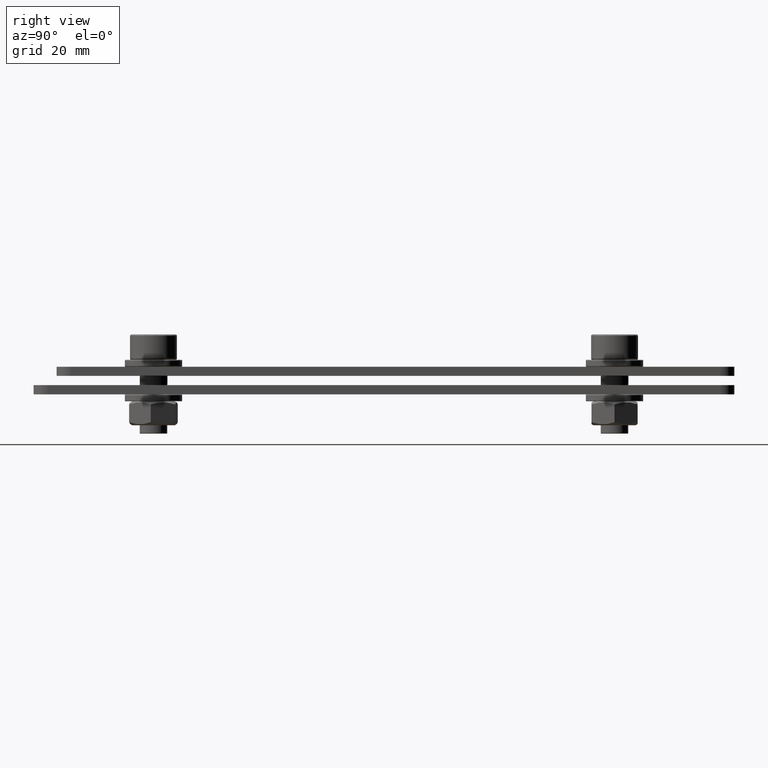
[diagram: clean part render]
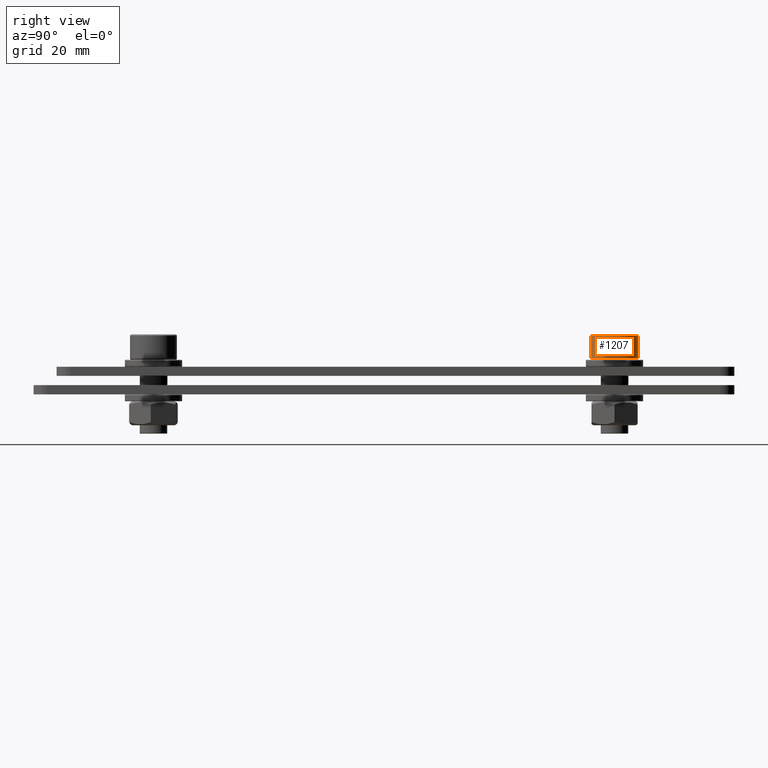
[diagram: same view with one face highlighted and labeled with its STEP entity id]
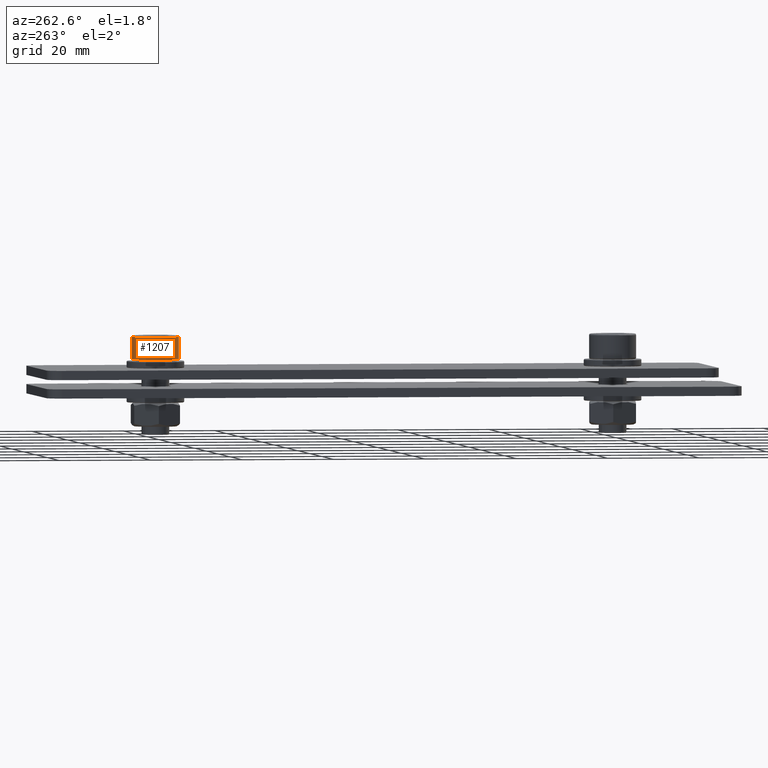
[diagram: same view with one face highlighted and labeled with its STEP entity id]
A machine part, right view. The second image highlights one B-rep face of the part: STEP entity #1207.
A second angle (auxiliary view) of the same face is appended — the face is thin or edge-on in the first view.
In plain terms, the highlighted cylindrical surface (bore or boss wall) has radius 5.1 mm, axis along (-0, 0, -1).
Its self-contained STEP definition (entity closure, byte-faithful):
#42 = VERTEX_POINT ( 'NONE', #3652 ) ;
#209 = CYLINDRICAL_SURFACE ( 'NONE', #431, 5.100000000000001421 ) ;
#318 = EDGE_CURVE ( 'NONE', #3458, #3458, #1781, .T. ) ;
#431 = AXIS2_PLACEMENT_3D ( 'NONE', #3725, #514, #2572 ) ;
#514 = DIRECTION ( 'NONE',  ( -1.110223024625156417E-16, 8.628166150854816622E-32, -1.000000000000000000 ) ) ;
#665 = DIRECTION ( 'NONE',  ( -1.110223024625156417E-16, 8.628166150854816622E-32, -1.000000000000000000 ) ) ;
#670 = AXIS2_PLACEMENT_3D ( 'NONE', #2151, #665, #934 ) ;
#721 = CARTESIAN_POINT ( 'NONE',  ( -20.00000000000002842, 126.0000000000000284, 5.800000000000004263 ) ) ;
#784 = FACE_OUTER_BOUND ( 'NONE', #2841, .T. ) ;
#799 = AXIS2_PLACEMENT_3D ( 'NONE', #721, #3017, #1385 ) ;
#832 = CARTESIAN_POINT ( 'NONE',  ( -17.24018919092320345, 121.7112421031139462, 10.70000000000000462 ) ) ;
#924 = CIRCLE ( 'NONE', #799, 5.100000000000009415 ) ;
#934 = DIRECTION ( 'NONE',  ( 0.5411393743287890024, -0.8409329209580552744, 0.000000000000000000 ) ) ;
#1207 = ADVANCED_FACE ( 'NONE', ( #784, #2845 ), #209, .T. ) ;
#1385 = DIRECTION ( 'NONE',  ( -0.5411393743287867819, 0.8409329209580567177, 0.000000000000000000 ) ) ;
#1781 = CIRCLE ( 'NONE', #670, 5.100000000000001421 ) ;
#2151 = CARTESIAN_POINT ( 'NONE',  ( -20.00000000000002842, 126.0000000000000284, 10.70000000000000462 ) ) ;
#2572 = DIRECTION ( 'NONE',  ( 0.5411393743287890024, -0.8409329209580552744, 0.000000000000000000 ) ) ;
#2573 = ORIENTED_EDGE ( 'NONE', *, *, #318, .T. ) ;
#2841 = EDGE_LOOP ( 'NONE', ( #2573 ) ) ;
#2845 = FACE_OUTER_BOUND ( 'NONE', #3645, .T. ) ;
#2899 = ORIENTED_EDGE ( 'NONE', *, *, #3208, .F. ) ;
#3017 = DIRECTION ( 'NONE',  ( -1.110223024625156417E-16, 8.628166150854816622E-32, -1.000000000000000000 ) ) ;
#3208 = EDGE_CURVE ( 'NONE', #42, #42, #924, .T. ) ;
#3458 = VERTEX_POINT ( 'NONE', #832 ) ;
#3645 = EDGE_LOOP ( 'NONE', ( #2899 ) ) ;
#3652 = CARTESIAN_POINT ( 'NONE',  ( -22.75981080907684628, 130.2887578968861249, 5.800000000000004263 ) ) ;
#3725 = CARTESIAN_POINT ( 'NONE',  ( -20.00000000000002842, 126.0000000000000284, 11.00000000000000355 ) ) ;